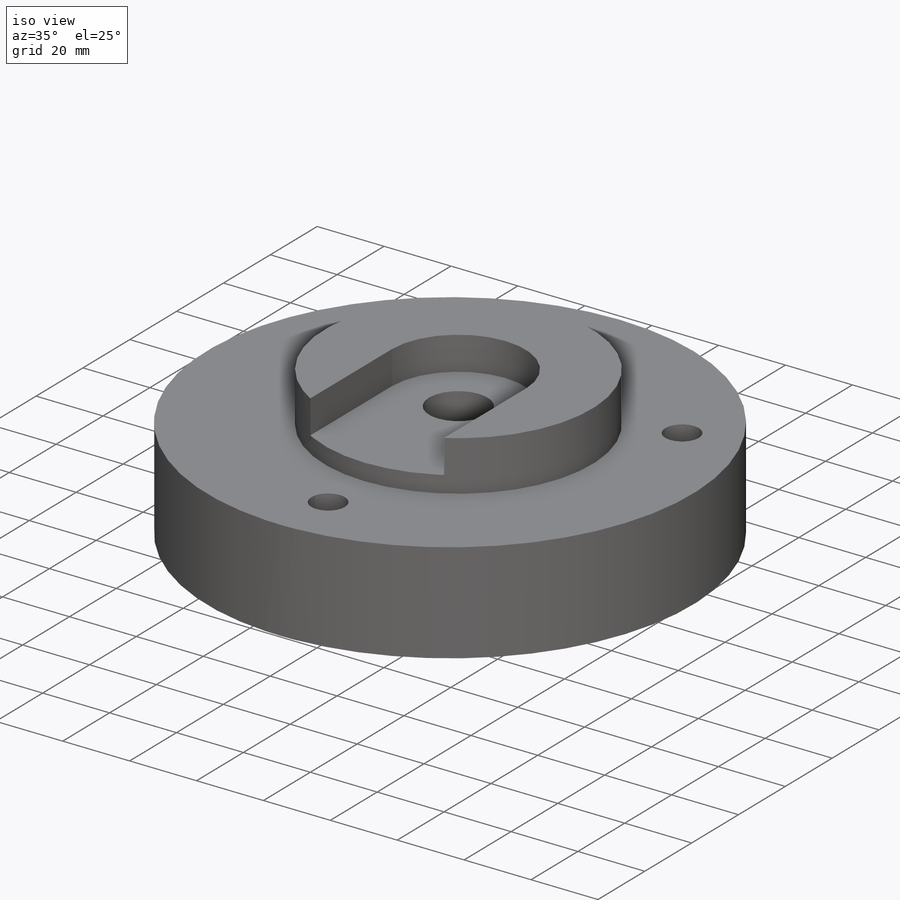
[diagram: iso view]
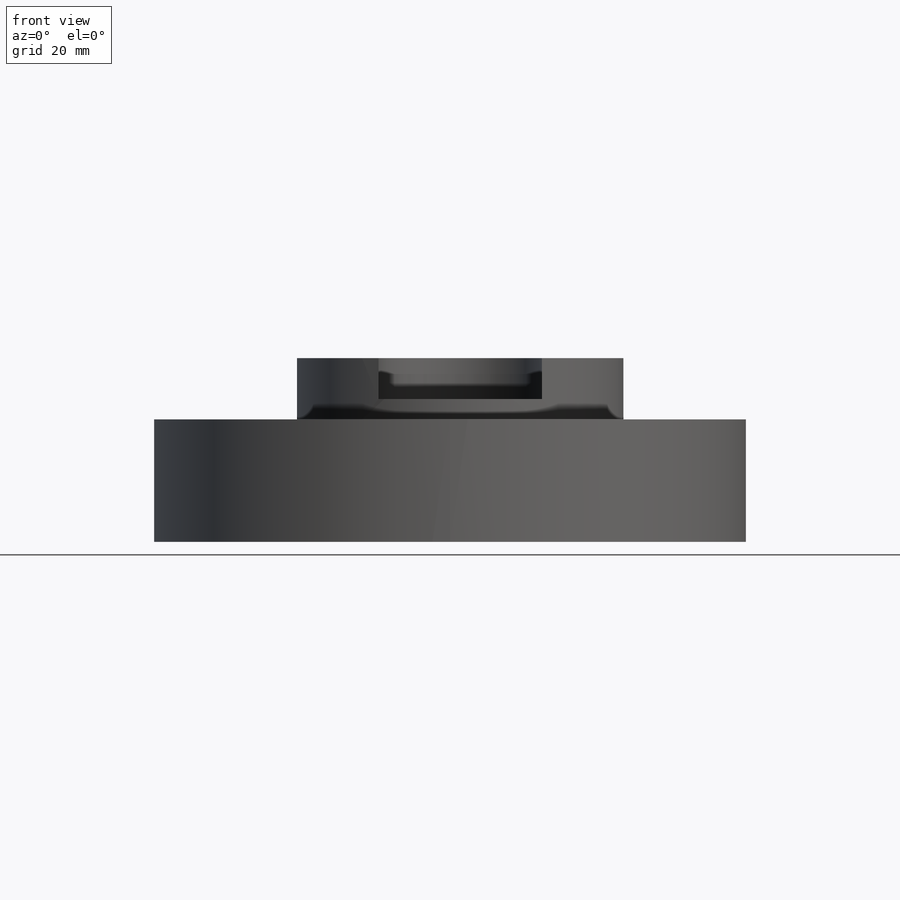
[diagram: front view]
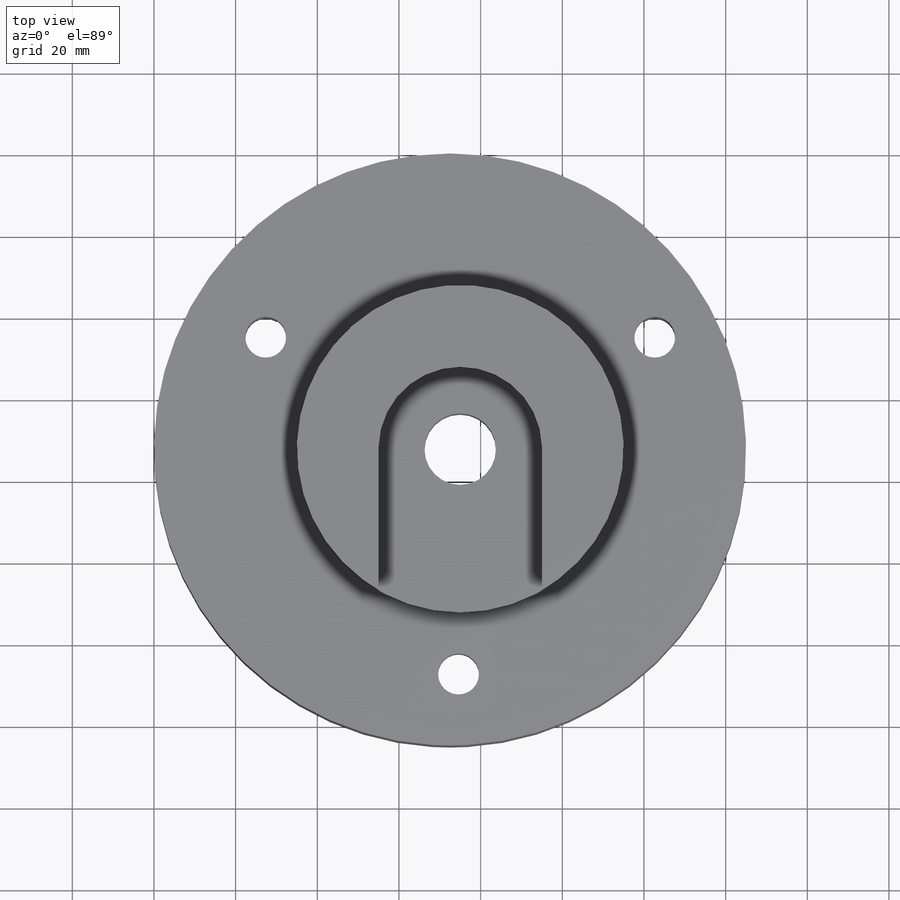
[diagram: top view]
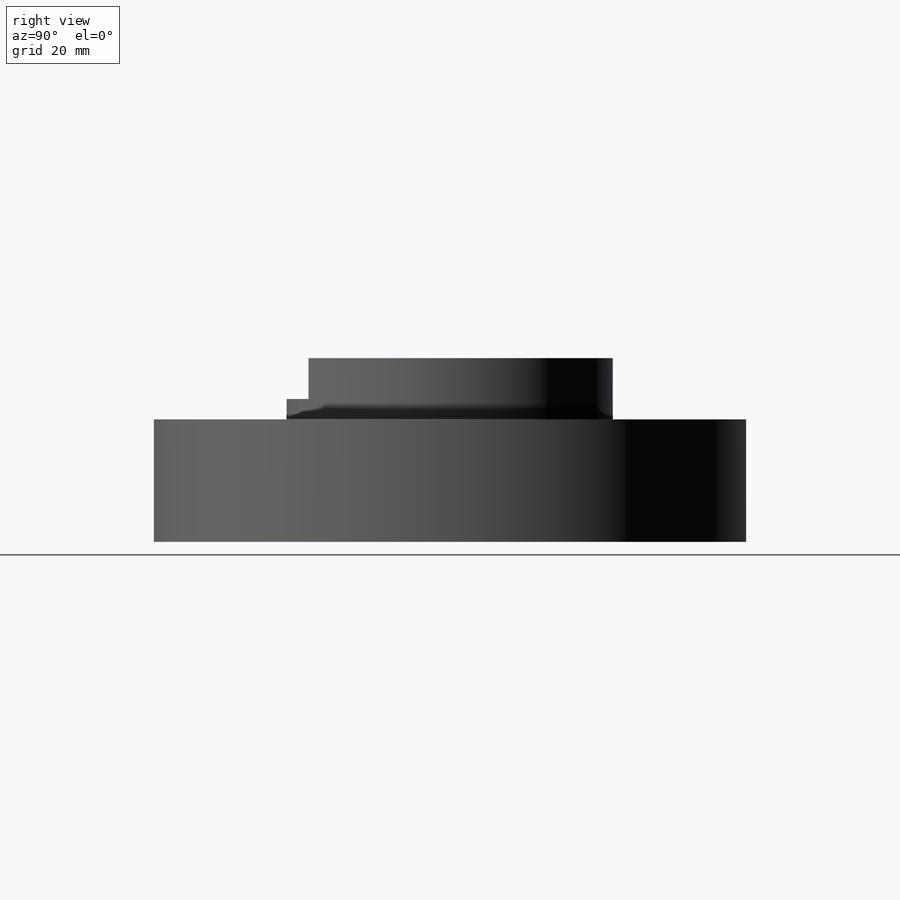
[diagram: right view]
SOLIDWORKS PART (.sldprt)
format: sldprt  version: not decoded by parser v0  size: 284,672 bytes
history: native  units: mm
features: sketch x9, cut_extrude x5, material x1, extrude x1, hole x1, thread x1 (+13 scaffold rows collapsed)
feature tree (31):
  scaffold x13  (default folders/planes/origin — collapsed)
  material  "Material <not specified>"
  sketch  "Sketch1"  dims[D1=30.0mm D2=15.0mm D3=35.0mm D4=80.0mm D5=150.0mm D6=36.0mm]
  extrude  "Boss-Extrude1"  Depth=145mm
  sketch  "Sketch2"  dims[D1=145.0mm D2=72.5mm D3=72.5mm]
  cut_extrude  "Cut-Extrude1"  Depth=145mm
  sketch  "Sketch3"  dims[D1=80.0mm D2=40.0mm D3=40.0mm D4=62.05mm D5=~62.046736mm]
  cut_extrude  "Cut-Extrude2"  Depth=15mm
  sketch  "Sketch4"  dims[D1=35.0mm D2=20.0mm D3=35.0mm D4=20.0mm D5=0.0mm]
  cut_extrude  "Cut-Extrude3"  Depth=10mm
  sketch  "Sketch5"
  hole  "M20 Tapped Hole1"  Diameter=17.5mm Depth=40mm
  sketch  "3DSketch1"
  sketch  "Sketch6"  dims[hole-wizard template sketch: 47 standard entries collapsed; hole parameters kept: c15.Tap Drill Depth=40.0mm c15.D3=~14.816244mm c15.Drill Angle=118.0deg]
  thread  "Hole Thread1"  Diameter=20mm  [1 undecoded]
  sketch  "Sketch7"  dims[c1.D2=10.0mm c1.D7=10.0mm c1.D8=10.0mm c1.D1=~74.583226mm c1.D3=55.0mm c1.D4=~163.228732mm c2.D4=120.0deg c2.D5=~55.483737mm c2.D6=~55.483737mm c3.D6=120.0deg c3.D9=55.0mm c3.D10=55.0mm]
  cut_extrude  "Cut-Extrude4"  Depth=83mm
  sketch  "Sketch8"  dims[D1=110.0mm]
  cut_extrude  "Cut-Extrude5"  Depth=15mm
decode coverage: 15 of 17 modeling features carry decoded parameters
note: ~ marks probable driven/reference dimensions
note: 1 parameter value undecoded
note: suppression state not decoded; provenance and decode notes live in map.json
